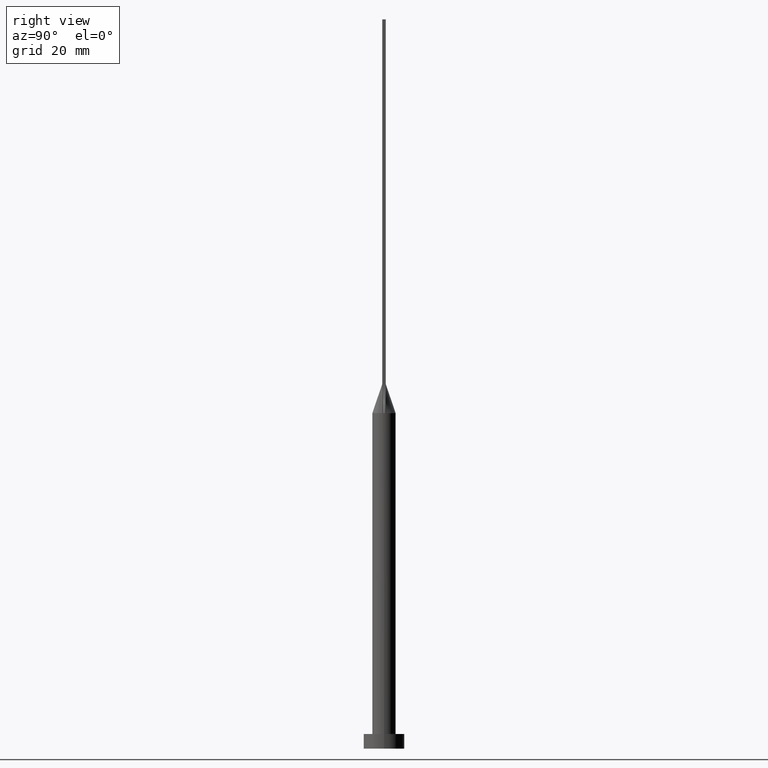
[diagram: clean part render]
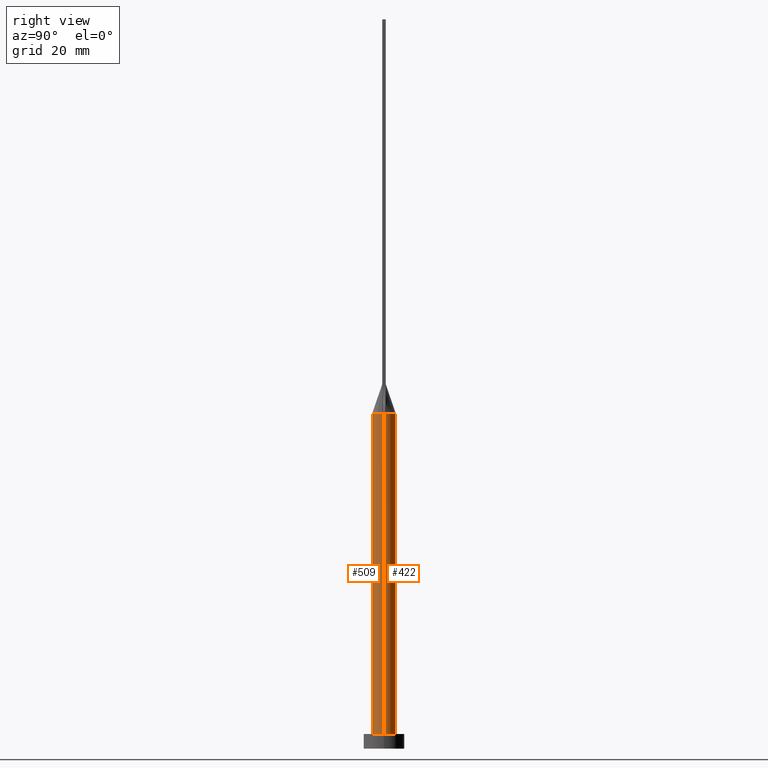
[diagram: same view with one multi-face feature highlighted, each face labeled with its STEP entity id]
A machine part, right view. The highlighted faces form ONE feature: a constant-radius fillet chain: 2 tangent blend faces with common blend radius 4 mm. The faces share edges in the B-rep.
Their STEP definitions:
[1] entity #422 (Cylinder):
#1 = CARTESIAN_POINT ( 'NONE',  ( -3.999842262273348048, -9.740943882706926662E-16, 115.0000000000000000 ) ) ;
#6 = VERTEX_POINT ( 'NONE', #538 ) ;
#24 = VERTEX_POINT ( 'NONE', #497 ) ;
#26 = DIRECTION ( 'NONE',  ( 1.000000000000000000, 0.000000000000000000, 0.000000000000000000 ) ) ;
#30 = CARTESIAN_POINT ( 'NONE',  ( 0.5684794080625145130, 4.000000000000000000, 114.9999999999999858 ) ) ;
#40 = CARTESIAN_POINT ( 'NONE',  ( 4.000000000000000000, 4.898587196589412829E-16, 115.0000000000000000 ) ) ;
#66 = CARTESIAN_POINT ( 'NONE',  ( 3.897760447583618948, 0.9569750049467118380, 115.0000000000000000 ) ) ;
#70 = CARTESIAN_POINT ( 'NONE',  ( 3.999842262273348936, 9.852009208038395466E-16, 115.0000000000000000 ) ) ;
#79 = AXIS2_PLACEMENT_3D ( 'NONE', #356, #125, #488 ) ;
#80 = CARTESIAN_POINT ( 'NONE',  ( -1.134810363096319996, 3.874001625491799938, 115.0000000000000284 ) ) ;
#81 = VERTEX_POINT ( 'NONE', #433 ) ;
#82 = CARTESIAN_POINT ( 'NONE',  ( 0.000000000000000000, 0.000000000000000000, 115.0000000000000000 ) ) ;
#84 = CARTESIAN_POINT ( 'NONE',  ( 0.000000000000000000, 0.000000000000000000, 115.0000000000000000 ) ) ;
#94 = CIRCLE ( 'NONE', #79, 4.000000000000000000 ) ;
#106 = CARTESIAN_POINT ( 'NONE',  ( 3.461914487322979017, 2.043998057340944197, 114.9999999999999716 ) ) ;
#109 = EDGE_CURVE ( 'NONE', #128, #81, #254, .T. ) ;
#110 = DIRECTION ( 'NONE',  ( 0.000000000000000000, 0.000000000000000000, 1.000000000000000000 ) ) ;
#114 = CARTESIAN_POINT ( 'NONE',  ( 2.553164211252348714, 3.116528153703943538, 115.0000000000000000 ) ) ;
#118 = CARTESIAN_POINT ( 'NONE',  ( 2.127794970397208107, 3.430476893735948885, 114.9999999999999858 ) ) ;
#123 = AXIS2_PLACEMENT_3D ( 'NONE', #84, #490, #575 ) ;
#125 = DIRECTION ( 'NONE',  ( 0.000000000000000000, 0.000000000000000000, 1.000000000000000000 ) ) ;
#128 = VERTEX_POINT ( 'NONE', #70 ) ;
#139 = VECTOR ( 'NONE', #306, 1000.000000000000000 ) ;
#151 = CARTESIAN_POINT ( 'NONE',  ( 0.000000000000000000, 0.000000000000000000, 115.0000000000000000 ) ) ;
#164 = CARTESIAN_POINT ( 'NONE',  ( -4.000000000000000000, 0.000000000000000000, 115.0000000000000000 ) ) ;
#167 = VERTEX_POINT ( 'NONE', #190 ) ;
#174 = EDGE_CURVE ( 'NONE', #81, #24, #362, .T. ) ;
#178 = VERTEX_POINT ( 'NONE', #1 ) ;
#190 = CARTESIAN_POINT ( 'NONE',  ( 4.000000000000000000, 4.898587196589412829E-16, 5.000000000000000000 ) ) ;
#202 = ORIENTED_EDGE ( 'NONE', *, *, #109, .F. ) ;
#203 = CARTESIAN_POINT ( 'NONE',  ( -0.5684794080625158452, 3.999999999999999112, 115.0000000000000000 ) ) ;
#220 = DIRECTION ( 'NONE',  ( -0.000000000000000000, -0.000000000000000000, -1.000000000000000000 ) ) ;
#254 = CIRCLE ( 'NONE', #423, 4.000000000000000000 ) ;
#256 = CARTESIAN_POINT ( 'NONE',  ( -2.553164211252348714, 3.116528153703943538, 115.0000000000000000 ) ) ;
#258 = DIRECTION ( 'NONE',  ( 0.000000000000000000, 0.000000000000000000, 1.000000000000000000 ) ) ;
#282 = ORIENTED_EDGE ( 'NONE', *, *, #430, .T. ) ;
#306 = DIRECTION ( 'NONE',  ( -0.000000000000000000, -0.000000000000000000, -1.000000000000000000 ) ) ;
#312 = DIRECTION ( 'NONE',  ( 1.000000000000000000, 0.000000000000000000, 0.000000000000000000 ) ) ;
#315 = CARTESIAN_POINT ( 'NONE',  ( -3.950102418235696522, 0.6320155757311002320, 115.0000000000000000 ) ) ;
#335 = VECTOR ( 'NONE', #220, 1000.000000000000000 ) ;
#349 = ORIENTED_EDGE ( 'NONE', *, *, #448, .T. ) ;
#350 = CARTESIAN_POINT ( 'NONE',  ( -3.800365609718893811, 1.311488165564686392, 114.9999999999999858 ) ) ;
#356 = CARTESIAN_POINT ( 'NONE',  ( 0.000000000000000000, 0.000000000000000000, 5.000000000000000000 ) ) ;
#357 = FACE_OUTER_BOUND ( 'NONE', #408, .T. ) ;
#362 = B_SPLINE_CURVE_WITH_KNOTS ( 'NONE', 3,
 ( #392, #66, #470, #106, #520, #114, #118, #439, #30, #203, #80, #525, #256, #399, #571, #350, #410, #315 ),
 .UNSPECIFIED., .F., .F.,
 ( 4, 2, 2, 2, 2, 2, 2, 2, 4 ),
 ( 0.000000000000000000, 0.1249999999999999445, 0.2499999999999998890, 0.3749999999999998335, 0.4999999999999997780, 0.6249999999999997780, 0.7499999999999998890, 0.8749999999999998890, 1.000000000000000000 ),
 .UNSPECIFIED. ) ;
#380 = EDGE_CURVE ( 'NONE', #178, #6, #530, .T. ) ;
#392 = CARTESIAN_POINT ( 'NONE',  ( 3.950097303404373150, 0.6320148730971616446, 115.0000000000000000 ) ) ;
#395 = ORIENTED_EDGE ( 'NONE', *, *, #174, .F. ) ;
#399 = CARTESIAN_POINT ( 'NONE',  ( -3.219262664220059023, 2.422342486356523938, 115.0000000000000000 ) ) ;
#400 = CYLINDRICAL_SURFACE ( 'NONE', #123, 4.000000000000000000 ) ;
#407 = EDGE_CURVE ( 'NONE', #24, #178, #556, .T. ) ;
#408 = EDGE_LOOP ( 'NONE', ( #202, #349, #282, #551, #513, #395 ) ) ;
#410 = CARTESIAN_POINT ( 'NONE',  ( -3.897760447583618504, 0.9569750049467115049, 115.0000000000000142 ) ) ;
#422 = ADVANCED_FACE ( 'NONE', ( #357 ), #400, .T. ) ;
#423 = AXIS2_PLACEMENT_3D ( 'NONE', #151, #110, #26 ) ;
#430 = EDGE_CURVE ( 'NONE', #167, #6, #94, .T. ) ;
#433 = CARTESIAN_POINT ( 'NONE',  ( 3.950097303404373150, 0.6320148730971616446, 115.0000000000000000 ) ) ;
#439 = CARTESIAN_POINT ( 'NONE',  ( 1.134810363096318664, 3.874001625491799050, 114.9999999999999858 ) ) ;
#448 = EDGE_CURVE ( 'NONE', #128, #167, #496, .T. ) ;
#470 = CARTESIAN_POINT ( 'NONE',  ( 3.800365609718893367, 1.311488165564687058, 115.0000000000000142 ) ) ;
#472 = AXIS2_PLACEMENT_3D ( 'NONE', #82, #258, #312 ) ;
#488 = DIRECTION ( 'NONE',  ( 1.000000000000000000, 0.000000000000000000, 0.000000000000000000 ) ) ;
#490 = DIRECTION ( 'NONE',  ( -0.000000000000000000, -0.000000000000000000, -1.000000000000000000 ) ) ;
#496 = LINE ( 'NONE', #40, #335 ) ;
#497 = CARTESIAN_POINT ( 'NONE',  ( -3.950102418235696522, 0.6320155757311002320, 115.0000000000000000 ) ) ;
#513 = ORIENTED_EDGE ( 'NONE', *, *, #407, .F. ) ;
#520 = CARTESIAN_POINT ( 'NONE',  ( 3.219262664220058134, 2.422342486356523938, 114.9999999999999858 ) ) ;
#525 = CARTESIAN_POINT ( 'NONE',  ( -2.127794970397209884, 3.430476893735948440, 115.0000000000000000 ) ) ;
#530 = LINE ( 'NONE', #164, #139 ) ;
#538 = CARTESIAN_POINT ( 'NONE',  ( -4.000000000000000000, 0.000000000000000000, 5.000000000000000000 ) ) ;
#551 = ORIENTED_EDGE ( 'NONE', *, *, #380, .F. ) ;
#556 = CIRCLE ( 'NONE', #472, 4.000000000000000000 ) ;
#571 = CARTESIAN_POINT ( 'NONE',  ( -3.461914487322979905, 2.043998057340944197, 115.0000000000000284 ) ) ;
#575 = DIRECTION ( 'NONE',  ( -1.000000000000000000, 0.000000000000000000, 0.000000000000000000 ) ) ;
[2] entity #509 (Cylinder):
#1 = CARTESIAN_POINT ( 'NONE',  ( -3.999842262273348048, -9.740943882706926662E-16, 115.0000000000000000 ) ) ;
#6 = VERTEX_POINT ( 'NONE', #538 ) ;
#18 = DIRECTION ( 'NONE',  ( 0.000000000000000000, 0.000000000000000000, 1.000000000000000000 ) ) ;
#21 = DIRECTION ( 'NONE',  ( 0.000000000000000000, 0.000000000000000000, 1.000000000000000000 ) ) ;
#40 = CARTESIAN_POINT ( 'NONE',  ( 4.000000000000000000, 4.898587196589412829E-16, 115.0000000000000000 ) ) ;
#43 = AXIS2_PLACEMENT_3D ( 'NONE', #426, #18, #161 ) ;
#53 = AXIS2_PLACEMENT_3D ( 'NONE', #390, #121, #72 ) ;
#64 = AXIS2_PLACEMENT_3D ( 'NONE', #189, #372, #553 ) ;
#70 = CARTESIAN_POINT ( 'NONE',  ( 3.999842262273348936, 9.852009208038395466E-16, 115.0000000000000000 ) ) ;
#72 = DIRECTION ( 'NONE',  ( -1.000000000000000000, 0.000000000000000000, 0.000000000000000000 ) ) ;
#87 = VERTEX_POINT ( 'NONE', #285 ) ;
#115 = CYLINDRICAL_SURFACE ( 'NONE', #53, 4.000000000000000000 ) ;
#119 = CARTESIAN_POINT ( 'NONE',  ( 3.950116941581656604, -0.6320178829360038053, 115.0000000000000000 ) ) ;
#121 = DIRECTION ( 'NONE',  ( -0.000000000000000000, -0.000000000000000000, -1.000000000000000000 ) ) ;
#128 = VERTEX_POINT ( 'NONE', #70 ) ;
#137 = ORIENTED_EDGE ( 'NONE', *, *, #200, .F. ) ;
#139 = VECTOR ( 'NONE', #306, 1000.000000000000000 ) ;
#161 = DIRECTION ( 'NONE',  ( 1.000000000000000000, 0.000000000000000000, 0.000000000000000000 ) ) ;
#162 = ORIENTED_EDGE ( 'NONE', *, *, #504, .F. ) ;
#164 = CARTESIAN_POINT ( 'NONE',  ( -4.000000000000000000, 0.000000000000000000, 115.0000000000000000 ) ) ;
#167 = VERTEX_POINT ( 'NONE', #190 ) ;
#168 = EDGE_CURVE ( 'NONE', #6, #167, #231, .T. ) ;
#172 = DIRECTION ( 'NONE',  ( 1.000000000000000000, 0.000000000000000000, 0.000000000000000000 ) ) ;
#178 = VERTEX_POINT ( 'NONE', #1 ) ;
#189 = CARTESIAN_POINT ( 'NONE',  ( 0.000000000000000000, 0.000000000000000000, 115.0000000000000000 ) ) ;
#190 = CARTESIAN_POINT ( 'NONE',  ( 4.000000000000000000, 4.898587196589412829E-16, 5.000000000000000000 ) ) ;
#196 = FACE_OUTER_BOUND ( 'NONE', #242, .T. ) ;
#200 = EDGE_CURVE ( 'NONE', #377, #128, #564, .T. ) ;
#211 = DIRECTION ( 'NONE',  ( 0.000000000000000000, 0.000000000000000000, 1.000000000000000000 ) ) ;
#220 = DIRECTION ( 'NONE',  ( -0.000000000000000000, -0.000000000000000000, -1.000000000000000000 ) ) ;
#223 = ORIENTED_EDGE ( 'NONE', *, *, #376, .F. ) ;
#231 = CIRCLE ( 'NONE', #322, 4.000000000000000000 ) ;
#242 = EDGE_LOOP ( 'NONE', ( #419, #137, #223, #162, #524, #481 ) ) ;
#285 = CARTESIAN_POINT ( 'NONE',  ( -3.950111798046394007, -0.6320171791297864994, 115.0000000000000000 ) ) ;
#296 = CARTESIAN_POINT ( 'NONE',  ( 0.000000000000000000, 0.000000000000000000, 5.000000000000000000 ) ) ;
#303 = CARTESIAN_POINT ( 'NONE',  ( 0.000000000000000000, 0.000000000000000000, 115.0000000000000000 ) ) ;
#306 = DIRECTION ( 'NONE',  ( -0.000000000000000000, -0.000000000000000000, -1.000000000000000000 ) ) ;
#322 = AXIS2_PLACEMENT_3D ( 'NONE', #296, #21, #557 ) ;
#335 = VECTOR ( 'NONE', #220, 1000.000000000000000 ) ;
#372 = DIRECTION ( 'NONE',  ( 0.000000000000000000, 0.000000000000000000, 1.000000000000000000 ) ) ;
#376 = EDGE_CURVE ( 'NONE', #87, #377, #401, .T. ) ;
#377 = VERTEX_POINT ( 'NONE', #119 ) ;
#380 = EDGE_CURVE ( 'NONE', #178, #6, #530, .T. ) ;
#390 = CARTESIAN_POINT ( 'NONE',  ( 0.000000000000000000, 0.000000000000000000, 115.0000000000000000 ) ) ;
#401 = CIRCLE ( 'NONE', #415, 4.000000000000000000 ) ;
#415 = AXIS2_PLACEMENT_3D ( 'NONE', #303, #211, #172 ) ;
#419 = ORIENTED_EDGE ( 'NONE', *, *, #448, .F. ) ;
#426 = CARTESIAN_POINT ( 'NONE',  ( 0.000000000000000000, 0.000000000000000000, 115.0000000000000000 ) ) ;
#448 = EDGE_CURVE ( 'NONE', #128, #167, #496, .T. ) ;
#463 = CIRCLE ( 'NONE', #43, 4.000000000000000000 ) ;
#481 = ORIENTED_EDGE ( 'NONE', *, *, #168, .T. ) ;
#496 = LINE ( 'NONE', #40, #335 ) ;
#504 = EDGE_CURVE ( 'NONE', #178, #87, #463, .T. ) ;
#509 = ADVANCED_FACE ( 'NONE', ( #196 ), #115, .T. ) ;
#524 = ORIENTED_EDGE ( 'NONE', *, *, #380, .T. ) ;
#530 = LINE ( 'NONE', #164, #139 ) ;
#538 = CARTESIAN_POINT ( 'NONE',  ( -4.000000000000000000, 0.000000000000000000, 5.000000000000000000 ) ) ;
#553 = DIRECTION ( 'NONE',  ( 1.000000000000000000, 9.769962616701377556E-15, 0.000000000000000000 ) ) ;
#557 = DIRECTION ( 'NONE',  ( 1.000000000000000000, 0.000000000000000000, 0.000000000000000000 ) ) ;
#564 = CIRCLE ( 'NONE', #64, 4.000000000000000000 ) ;